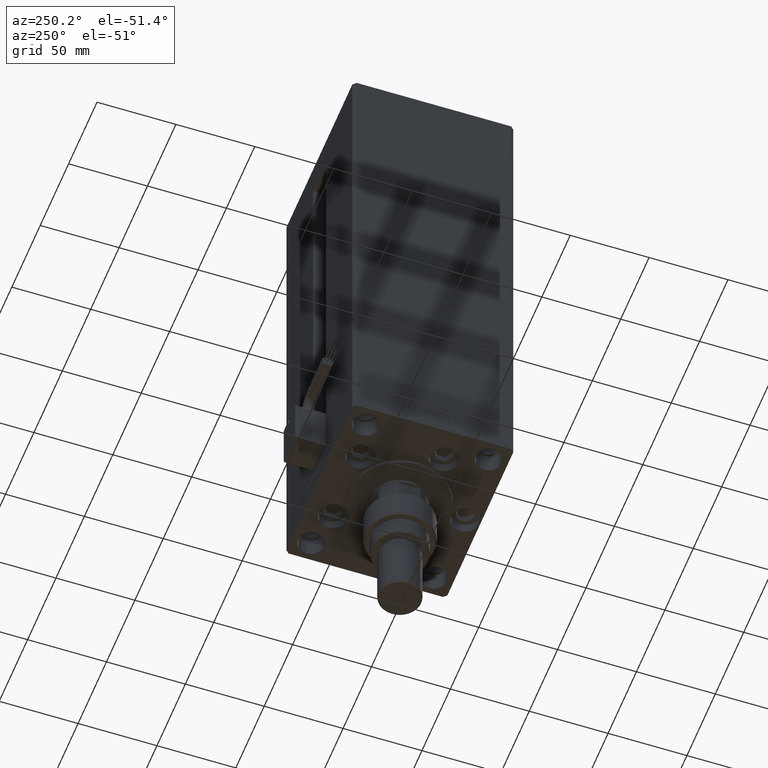
[diagram: clean part render]
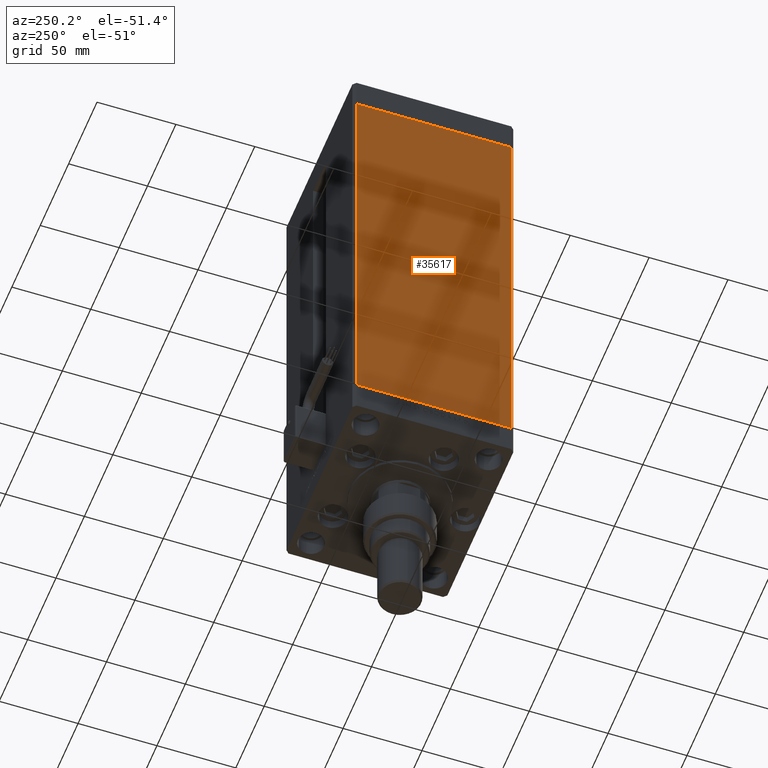
[diagram: same view with one face highlighted and labeled with its STEP entity id]
A machine part, auxiliary view. The second image highlights one B-rep face of the part: STEP entity #35617.
In plain terms, the highlighted planar face has unit normal (1, 0, 0).
Its self-contained STEP definition (entity closure, byte-faithful):
#312 = DIRECTION ( 'NONE',  ( 2.832201593431521726E-16, -1.000000000000000000, 0.000000000000000000 ) ) ;
#1740 = CARTESIAN_POINT ( 'NONE',  ( -60.00000000000001421, 49.00000000000000000, 268.5000000000000000 ) ) ;
#4241 = VERTEX_POINT ( 'NONE', #40598 ) ;
#6243 = CARTESIAN_POINT ( 'NONE',  ( -59.99999999999998579, -49.00000000000000000, 268.5000000000000000 ) ) ;
#6672 = LINE ( 'NONE', #35245, #17994 ) ;
#9831 = EDGE_CURVE ( 'NONE', #4241, #18533, #37236, .T. ) ;
#10629 = DIRECTION ( 'NONE',  ( -0.000000000000000000, -0.000000000000000000, -1.000000000000000000 ) ) ;
#10954 = LINE ( 'NONE', #30655, #20637 ) ;
#11595 = PLANE ( 'NONE',  #35113 ) ;
#11849 = DIRECTION ( 'NONE',  ( -2.832201593431521726E-16, 1.000000000000000000, 0.000000000000000000 ) ) ;
#12638 = ORIENTED_EDGE ( 'NONE', *, *, #9831, .T. ) ;
#15911 = CARTESIAN_POINT ( 'NONE',  ( -60.00000000000001421, 49.00000000000000000, 268.5000000000000000 ) ) ;
#17994 = VECTOR ( 'NONE', #19341, 1000.000000000000000 ) ;
#18342 = VERTEX_POINT ( 'NONE', #1740 ) ;
#18533 = VERTEX_POINT ( 'NONE', #45034 ) ;
#19341 = DIRECTION ( 'NONE',  ( -0.000000000000000000, -0.000000000000000000, -1.000000000000000000 ) ) ;
#20637 = VECTOR ( 'NONE', #27399, 1000.000000000000000 ) ;
#24571 = CARTESIAN_POINT ( 'NONE',  ( -60.00000000000001421, 49.00000000000000000, 0.000000000000000000 ) ) ;
#27399 = DIRECTION ( 'NONE',  ( 2.832201593431521726E-16, -1.000000000000000000, 0.000000000000000000 ) ) ;
#28509 = VECTOR ( 'NONE', #312, 1000.000000000000000 ) ;
#29860 = ORIENTED_EDGE ( 'NONE', *, *, #44255, .F. ) ;
#30625 = ORIENTED_EDGE ( 'NONE', *, *, #34521, .F. ) ;
#30655 = CARTESIAN_POINT ( 'NONE',  ( -60.00000000000001421, 49.00000000000000000, 268.5000000000000000 ) ) ;
#31113 = CARTESIAN_POINT ( 'NONE',  ( -60.00000000000001421, 49.00000000000000000, 268.5000000000000000 ) ) ;
#34521 = EDGE_CURVE ( 'NONE', #40464, #18533, #6672, .T. ) ;
#35113 = AXIS2_PLACEMENT_3D ( 'NONE', #15911, #49055, #11849 ) ;
#35152 = LINE ( 'NONE', #31113, #37841 ) ;
#35245 = CARTESIAN_POINT ( 'NONE',  ( -59.99999999999998579, -49.00000000000000000, 268.5000000000000000 ) ) ;
#35617 = ADVANCED_FACE ( 'NONE', ( #36386 ), #11595, .F. ) ;
#36386 = FACE_OUTER_BOUND ( 'NONE', #45660, .T. ) ;
#37236 = LINE ( 'NONE', #24571, #28509 ) ;
#37841 = VECTOR ( 'NONE', #10629, 1000.000000000000000 ) ;
#40464 = VERTEX_POINT ( 'NONE', #6243 ) ;
#40598 = CARTESIAN_POINT ( 'NONE',  ( -60.00000000000001421, 49.00000000000000000, 0.000000000000000000 ) ) ;
#43576 = EDGE_CURVE ( 'NONE', #18342, #4241, #35152, .T. ) ;
#44255 = EDGE_CURVE ( 'NONE', #18342, #40464, #10954, .T. ) ;
#45034 = CARTESIAN_POINT ( 'NONE',  ( -59.99999999999998579, -49.00000000000000000, 0.000000000000000000 ) ) ;
#45660 = EDGE_LOOP ( 'NONE', ( #12638, #30625, #29860, #48676 ) ) ;
#48676 = ORIENTED_EDGE ( 'NONE', *, *, #43576, .T. ) ;
#49055 = DIRECTION ( 'NONE',  ( 1.000000000000000000, 2.832201593431521726E-16, -0.000000000000000000 ) ) ;